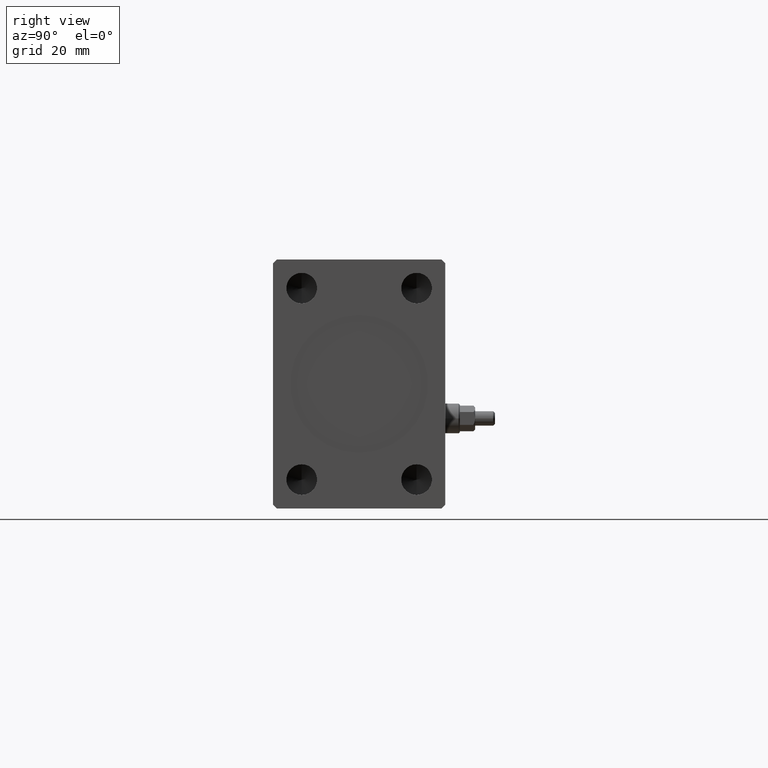
[diagram: clean part render]
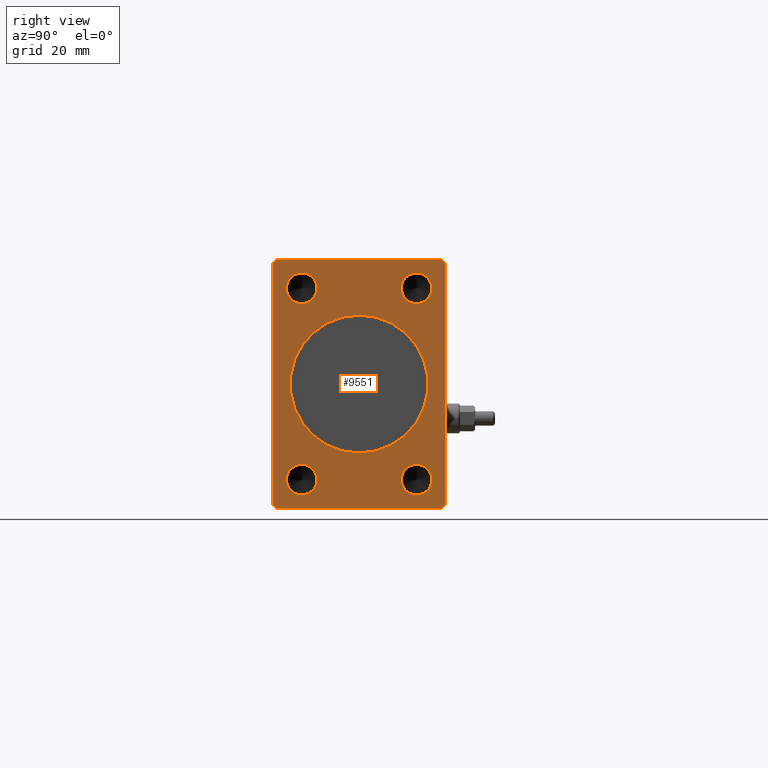
[diagram: same view with one face highlighted and labeled with its STEP entity id]
A machine part, right view. The second image highlights one B-rep face of the part: STEP entity #9551.
In plain terms, the highlighted planar face has unit normal (1, 0, 0).
Its self-contained STEP definition (entity closure, byte-faithful):
#83 = EDGE_LOOP ( 'NONE', ( #30204, #25811 ) ) ;
#359 = AXIS2_PLACEMENT_3D ( 'NONE', #20352, #24458, #20573 ) ;
#612 = CARTESIAN_POINT ( 'NONE',  ( 163.0000000000000000, 15.00000000000000355, 25.00000000000000000 ) ) ;
#1237 = CARTESIAN_POINT ( 'NONE',  ( 163.0000000000000000, -22.50000000000001421, -31.50000000000000711 ) ) ;
#1385 = CARTESIAN_POINT ( 'NONE',  ( 163.0000000000000000, 22.49999999999999645, -31.50000000000000000 ) ) ;
#1619 = PLANE ( 'NONE',  #16834 ) ;
#2049 = LINE ( 'NONE', #5937, #5239 ) ;
#2435 = VECTOR ( 'NONE', #40784, 1000.000000000000114 ) ;
#2463 = DIRECTION ( 'NONE',  ( 0.000000000000000000, 0.000000000000000000, 1.000000000000000000 ) ) ;
#2593 = DIRECTION ( 'NONE',  ( 0.000000000000000000, -0.7071067811865474617, -0.7071067811865474617 ) ) ;
#2694 = CARTESIAN_POINT ( 'NONE',  ( 163.0000000000000000, 22.49999999999999645, 31.50000000000000000 ) ) ;
#2800 = CARTESIAN_POINT ( 'NONE',  ( 163.0000000000000000, -21.50000000000001776, -32.50000000000000711 ) ) ;
#3047 = AXIS2_PLACEMENT_3D ( 'NONE', #18612, #43042, #11758 ) ;
#3831 = DIRECTION ( 'NONE',  ( 0.000000000000000000, 0.000000000000000000, -1.000000000000000000 ) ) ;
#4010 = CIRCLE ( 'NONE', #359, 4.000000000000000000 ) ;
#4119 = ORIENTED_EDGE ( 'NONE', *, *, #34280, .F. ) ;
#4247 = ORIENTED_EDGE ( 'NONE', *, *, #28255, .T. ) ;
#4655 = ORIENTED_EDGE ( 'NONE', *, *, #17882, .T. ) ;
#4867 = LINE ( 'NONE', #21762, #31546 ) ;
#5041 = DIRECTION ( 'NONE',  ( 0.000000000000000000, 0.000000000000000000, -1.000000000000000000 ) ) ;
#5103 = VERTEX_POINT ( 'NONE', #1237 ) ;
#5239 = VECTOR ( 'NONE', #12797, 1000.000000000000000 ) ;
#5281 = CARTESIAN_POINT ( 'NONE',  ( 163.0000000000000000, 0.000000000000000000, -18.00000000000000000 ) ) ;
#5560 = DIRECTION ( 'NONE',  ( 1.000000000000000000, -0.000000000000000000, -0.000000000000000000 ) ) ;
#5847 = CARTESIAN_POINT ( 'NONE',  ( 163.0000000000000000, -14.99999999999999645, -20.99999999999999645 ) ) ;
#5937 = CARTESIAN_POINT ( 'NONE',  ( 163.0000000000000000, -22.50000000000001776, 31.50000000000000000 ) ) ;
#6024 = AXIS2_PLACEMENT_3D ( 'NONE', #27015, #5560, #27238 ) ;
#6100 = CARTESIAN_POINT ( 'NONE',  ( 163.0000000000000000, 15.00000000000000355, -24.99999999999999289 ) ) ;
#6502 = CARTESIAN_POINT ( 'NONE',  ( 163.0000000000000000, 21.49999999999999645, 32.50000000000000000 ) ) ;
#6958 = CIRCLE ( 'NONE', #37610, 4.000000000000000000 ) ;
#7792 = DIRECTION ( 'NONE',  ( 1.000000000000000000, -0.000000000000000000, -0.000000000000000000 ) ) ;
#8100 = CIRCLE ( 'NONE', #37997, 4.000000000000000000 ) ;
#8110 = DIRECTION ( 'NONE',  ( 0.000000000000000000, 1.000000000000000000, 1.613696256722610912E-16 ) ) ;
#8888 = CARTESIAN_POINT ( 'NONE',  ( 163.0000000000000000, -21.50000000000001421, 32.50000000000000000 ) ) ;
#9082 = AXIS2_PLACEMENT_3D ( 'NONE', #612, #25057, #38977 ) ;
#9479 = EDGE_CURVE ( 'NONE', #13968, #36141, #8100, .T. ) ;
#9523 = DIRECTION ( 'NONE',  ( 0.000000000000000000, 0.000000000000000000, -1.000000000000000000 ) ) ;
#9551 = ADVANCED_FACE ( 'NONE', ( #44655, #38412, #27913, #18285, #19201, #14868 ), #1619, .T. ) ;
#9597 = VERTEX_POINT ( 'NONE', #1385 ) ;
#10964 = CARTESIAN_POINT ( 'NONE',  ( 163.0000000000000000, -14.99999999999999645, 28.99999999999999645 ) ) ;
#11159 = VERTEX_POINT ( 'NONE', #11475 ) ;
#11475 = CARTESIAN_POINT ( 'NONE',  ( 163.0000000000000000, 15.00000000000000355, -20.99999999999999289 ) ) ;
#11758 = DIRECTION ( 'NONE',  ( 0.000000000000000000, 0.000000000000000000, -1.000000000000000000 ) ) ;
#11786 = EDGE_CURVE ( 'NONE', #18783, #12796, #39518, .T. ) ;
#11941 = AXIS2_PLACEMENT_3D ( 'NONE', #43785, #43557, #29170 ) ;
#12046 = AXIS2_PLACEMENT_3D ( 'NONE', #37202, #39943, #19848 ) ;
#12467 = EDGE_CURVE ( 'NONE', #45048, #5103, #2049, .T. ) ;
#12796 = VERTEX_POINT ( 'NONE', #37110 ) ;
#12797 = DIRECTION ( 'NONE',  ( 0.000000000000000000, 5.507058653894625853E-17, -1.000000000000000000 ) ) ;
#12947 = CARTESIAN_POINT ( 'NONE',  ( 163.0000000000000000, -14.99999999999999645, -28.99999999999999645 ) ) ;
#13028 = EDGE_CURVE ( 'NONE', #5103, #38467, #4867, .T. ) ;
#13174 = ORIENTED_EDGE ( 'NONE', *, *, #23524, .F. ) ;
#13198 = CIRCLE ( 'NONE', #19022, 4.000000000000000000 ) ;
#13473 = VERTEX_POINT ( 'NONE', #39461 ) ;
#13968 = VERTEX_POINT ( 'NONE', #26407 ) ;
#13983 = VECTOR ( 'NONE', #18070, 1000.000000000000114 ) ;
#13994 = CARTESIAN_POINT ( 'NONE',  ( 163.0000000000000000, 22.49999999999999645, 31.50000000000000000 ) ) ;
#14231 = CIRCLE ( 'NONE', #11941, 18.00000000000000000 ) ;
#14468 = ORIENTED_EDGE ( 'NONE', *, *, #43048, .F. ) ;
#14868 = FACE_OUTER_BOUND ( 'NONE', #16667, .T. ) ;
#15595 = VECTOR ( 'NONE', #2463, 1000.000000000000000 ) ;
#16667 = EDGE_LOOP ( 'NONE', ( #18895, #23450, #27296, #33376, #20107, #4247, #17109, #4655 ) ) ;
#16739 = CARTESIAN_POINT ( 'NONE',  ( 163.0000000000000000, -21.50000000000001421, 32.50000000000000000 ) ) ;
#16834 = AXIS2_PLACEMENT_3D ( 'NONE', #28806, #32693, #36559 ) ;
#17109 = ORIENTED_EDGE ( 'NONE', *, *, #32308, .T. ) ;
#17226 = LINE ( 'NONE', #6502, #39988 ) ;
#17405 = LINE ( 'NONE', #16739, #19312 ) ;
#17848 = CARTESIAN_POINT ( 'NONE',  ( 163.0000000000000000, 21.49999999999999645, -32.50000000000000000 ) ) ;
#17882 = EDGE_CURVE ( 'NONE', #9597, #39638, #43580, .T. ) ;
#17980 = CARTESIAN_POINT ( 'NONE',  ( 163.0000000000000000, -14.99999999999999645, -24.99999999999999645 ) ) ;
#18055 = CARTESIAN_POINT ( 'NONE',  ( 163.0000000000000000, -14.99999999999999645, 24.99999999999999645 ) ) ;
#18061 = DIRECTION ( 'NONE',  ( 0.000000000000000000, 0.000000000000000000, -1.000000000000000000 ) ) ;
#18070 = DIRECTION ( 'NONE',  ( 0.000000000000000000, 0.7071067811865474617, 0.7071067811865474617 ) ) ;
#18196 = ORIENTED_EDGE ( 'NONE', *, *, #9479, .F. ) ;
#18285 = FACE_BOUND ( 'NONE', #35665, .T. ) ;
#18612 = CARTESIAN_POINT ( 'NONE',  ( 163.0000000000000000, 0.000000000000000000, 0.000000000000000000 ) ) ;
#18689 = VECTOR ( 'NONE', #8110, 1000.000000000000000 ) ;
#18783 = VERTEX_POINT ( 'NONE', #5281 ) ;
#18895 = ORIENTED_EDGE ( 'NONE', *, *, #41530, .T. ) ;
#19022 = AXIS2_PLACEMENT_3D ( 'NONE', #17980, #28267, #3831 ) ;
#19201 = FACE_BOUND ( 'NONE', #83, .T. ) ;
#19312 = VECTOR ( 'NONE', #2593, 1000.000000000000114 ) ;
#19365 = CARTESIAN_POINT ( 'NONE',  ( 163.0000000000000000, 15.00000000000000355, 21.00000000000000000 ) ) ;
#19726 = EDGE_CURVE ( 'NONE', #21707, #45048, #17405, .T. ) ;
#19848 = DIRECTION ( 'NONE',  ( 0.000000000000000000, 0.000000000000000000, -1.000000000000000000 ) ) ;
#20107 = ORIENTED_EDGE ( 'NONE', *, *, #13028, .T. ) ;
#20352 = CARTESIAN_POINT ( 'NONE',  ( 163.0000000000000000, -14.99999999999999645, 24.99999999999999645 ) ) ;
#20573 = DIRECTION ( 'NONE',  ( 0.000000000000000000, 0.000000000000000000, -1.000000000000000000 ) ) ;
#20766 = EDGE_CURVE ( 'NONE', #34889, #32184, #4010, .T. ) ;
#21122 = EDGE_CURVE ( 'NONE', #12796, #18783, #14231, .T. ) ;
#21379 = VERTEX_POINT ( 'NONE', #21736 ) ;
#21448 = AXIS2_PLACEMENT_3D ( 'NONE', #6100, #44254, #9523 ) ;
#21707 = VERTEX_POINT ( 'NONE', #8888 ) ;
#21736 = CARTESIAN_POINT ( 'NONE',  ( 163.0000000000000000, 15.00000000000000355, -28.99999999999999289 ) ) ;
#21762 = CARTESIAN_POINT ( 'NONE',  ( 163.0000000000000000, -22.50000000000001421, -31.50000000000000711 ) ) ;
#21778 = EDGE_CURVE ( 'NONE', #21379, #11159, #38289, .T. ) ;
#21954 = LINE ( 'NONE', #17848, #13983 ) ;
#22392 = DIRECTION ( 'NONE',  ( 1.000000000000000000, -0.000000000000000000, -0.000000000000000000 ) ) ;
#23248 = CARTESIAN_POINT ( 'NONE',  ( 163.0000000000000000, 22.49999999999999645, -31.50000000000000000 ) ) ;
#23450 = ORIENTED_EDGE ( 'NONE', *, *, #31064, .T. ) ;
#23524 = EDGE_CURVE ( 'NONE', #11159, #21379, #29516, .T. ) ;
#24458 = DIRECTION ( 'NONE',  ( 1.000000000000000000, -0.000000000000000000, -0.000000000000000000 ) ) ;
#25057 = DIRECTION ( 'NONE',  ( 1.000000000000000000, -0.000000000000000000, -0.000000000000000000 ) ) ;
#25705 = CIRCLE ( 'NONE', #6024, 4.000000000000000000 ) ;
#25811 = ORIENTED_EDGE ( 'NONE', *, *, #20766, .F. ) ;
#25978 = EDGE_CURVE ( 'NONE', #32184, #34889, #6958, .T. ) ;
#26348 = ORIENTED_EDGE ( 'NONE', *, *, #11786, .F. ) ;
#26407 = CARTESIAN_POINT ( 'NONE',  ( 163.0000000000000000, 15.00000000000000355, 29.00000000000000000 ) ) ;
#27015 = CARTESIAN_POINT ( 'NONE',  ( 163.0000000000000000, -14.99999999999999645, -24.99999999999999645 ) ) ;
#27238 = DIRECTION ( 'NONE',  ( 0.000000000000000000, 0.000000000000000000, -1.000000000000000000 ) ) ;
#27296 = ORIENTED_EDGE ( 'NONE', *, *, #19726, .T. ) ;
#27623 = VERTEX_POINT ( 'NONE', #5847 ) ;
#27913 = FACE_BOUND ( 'NONE', #44789, .T. ) ;
#28255 = EDGE_CURVE ( 'NONE', #38467, #13473, #39384, .T. ) ;
#28267 = DIRECTION ( 'NONE',  ( 1.000000000000000000, -0.000000000000000000, -0.000000000000000000 ) ) ;
#28806 = CARTESIAN_POINT ( 'NONE',  ( 163.0000000000000000, 0.000000000000000000, 0.000000000000000000 ) ) ;
#29170 = DIRECTION ( 'NONE',  ( 0.000000000000000000, 0.000000000000000000, -1.000000000000000000 ) ) ;
#29516 = CIRCLE ( 'NONE', #21448, 4.000000000000000000 ) ;
#30138 = VERTEX_POINT ( 'NONE', #31725 ) ;
#30204 = ORIENTED_EDGE ( 'NONE', *, *, #25978, .F. ) ;
#31064 = EDGE_CURVE ( 'NONE', #30138, #21707, #17226, .T. ) ;
#31546 = VECTOR ( 'NONE', #36601, 1000.000000000000114 ) ;
#31565 = CARTESIAN_POINT ( 'NONE',  ( 163.0000000000000000, 15.00000000000000355, 25.00000000000000000 ) ) ;
#31725 = CARTESIAN_POINT ( 'NONE',  ( 163.0000000000000000, 21.49999999999999645, 32.50000000000000000 ) ) ;
#32184 = VERTEX_POINT ( 'NONE', #35217 ) ;
#32232 = ORIENTED_EDGE ( 'NONE', *, *, #38891, .F. ) ;
#32308 = EDGE_CURVE ( 'NONE', #13473, #9597, #21954, .T. ) ;
#32693 = DIRECTION ( 'NONE',  ( 1.000000000000000000, 0.000000000000000000, 0.000000000000000000 ) ) ;
#32951 = CARTESIAN_POINT ( 'NONE',  ( 163.0000000000000000, -22.50000000000001776, 31.50000000000000000 ) ) ;
#33247 = CARTESIAN_POINT ( 'NONE',  ( 163.0000000000000000, -21.50000000000001776, -32.50000000000000711 ) ) ;
#33376 = ORIENTED_EDGE ( 'NONE', *, *, #12467, .T. ) ;
#34280 = EDGE_CURVE ( 'NONE', #27623, #44820, #13198, .T. ) ;
#34889 = VERTEX_POINT ( 'NONE', #10964 ) ;
#34907 = EDGE_LOOP ( 'NONE', ( #26348, #44675 ) ) ;
#35217 = CARTESIAN_POINT ( 'NONE',  ( 163.0000000000000000, -14.99999999999999645, 20.99999999999999645 ) ) ;
#35665 = EDGE_LOOP ( 'NONE', ( #43993, #13174 ) ) ;
#36141 = VERTEX_POINT ( 'NONE', #19365 ) ;
#36559 = DIRECTION ( 'NONE',  ( 0.000000000000000000, 0.000000000000000000, -1.000000000000000000 ) ) ;
#36601 = DIRECTION ( 'NONE',  ( 0.000000000000000000, 0.7071067811865451302, -0.7071067811865500152 ) ) ;
#37110 = CARTESIAN_POINT ( 'NONE',  ( 163.0000000000000000, 2.204364238465235428E-15, 18.00000000000000000 ) ) ;
#37202 = CARTESIAN_POINT ( 'NONE',  ( 163.0000000000000000, 15.00000000000000355, -24.99999999999999289 ) ) ;
#37610 = AXIS2_PLACEMENT_3D ( 'NONE', #18055, #22392, #5041 ) ;
#37997 = AXIS2_PLACEMENT_3D ( 'NONE', #31565, #7792, #18061 ) ;
#38289 = CIRCLE ( 'NONE', #12046, 4.000000000000000000 ) ;
#38412 = FACE_BOUND ( 'NONE', #44454, .T. ) ;
#38467 = VERTEX_POINT ( 'NONE', #2800 ) ;
#38891 = EDGE_CURVE ( 'NONE', #44820, #27623, #25705, .T. ) ;
#38977 = DIRECTION ( 'NONE',  ( 0.000000000000000000, 0.000000000000000000, -1.000000000000000000 ) ) ;
#39384 = LINE ( 'NONE', #33247, #18689 ) ;
#39461 = CARTESIAN_POINT ( 'NONE',  ( 163.0000000000000000, 21.49999999999999645, -32.50000000000000000 ) ) ;
#39518 = CIRCLE ( 'NONE', #3047, 18.00000000000000000 ) ;
#39638 = VERTEX_POINT ( 'NONE', #2694 ) ;
#39943 = DIRECTION ( 'NONE',  ( 1.000000000000000000, -0.000000000000000000, -0.000000000000000000 ) ) ;
#39988 = VECTOR ( 'NONE', #45105, 1000.000000000000000 ) ;
#40784 = DIRECTION ( 'NONE',  ( 0.000000000000000000, -0.7071067811865474617, 0.7071067811865474617 ) ) ;
#41530 = EDGE_CURVE ( 'NONE', #39638, #30138, #44669, .T. ) ;
#41876 = CIRCLE ( 'NONE', #9082, 4.000000000000000000 ) ;
#43042 = DIRECTION ( 'NONE',  ( 1.000000000000000000, 0.000000000000000000, 0.000000000000000000 ) ) ;
#43048 = EDGE_CURVE ( 'NONE', #36141, #13968, #41876, .T. ) ;
#43557 = DIRECTION ( 'NONE',  ( 1.000000000000000000, 0.000000000000000000, 0.000000000000000000 ) ) ;
#43580 = LINE ( 'NONE', #23248, #15595 ) ;
#43785 = CARTESIAN_POINT ( 'NONE',  ( 163.0000000000000000, 0.000000000000000000, 0.000000000000000000 ) ) ;
#43993 = ORIENTED_EDGE ( 'NONE', *, *, #21778, .F. ) ;
#44254 = DIRECTION ( 'NONE',  ( 1.000000000000000000, -0.000000000000000000, -0.000000000000000000 ) ) ;
#44454 = EDGE_LOOP ( 'NONE', ( #14468, #18196 ) ) ;
#44655 = FACE_BOUND ( 'NONE', #34907, .T. ) ;
#44669 = LINE ( 'NONE', #13994, #2435 ) ;
#44675 = ORIENTED_EDGE ( 'NONE', *, *, #21122, .F. ) ;
#44789 = EDGE_LOOP ( 'NONE', ( #32232, #4119 ) ) ;
#44820 = VERTEX_POINT ( 'NONE', #12947 ) ;
#45048 = VERTEX_POINT ( 'NONE', #32951 ) ;
#45105 = DIRECTION ( 'NONE',  ( 0.000000000000000000, -1.000000000000000000, 0.000000000000000000 ) ) ;